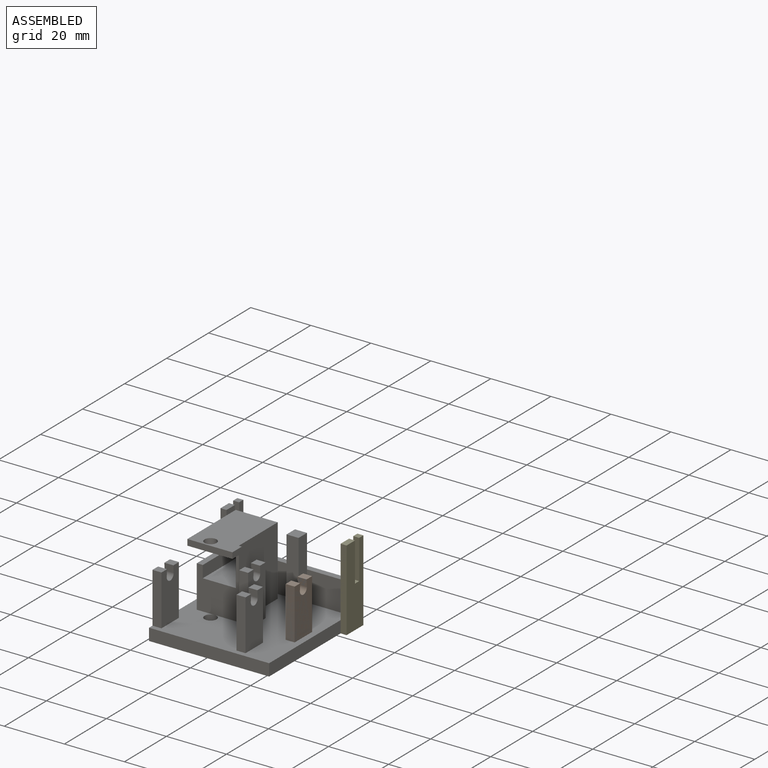
[diagram: assembled view]
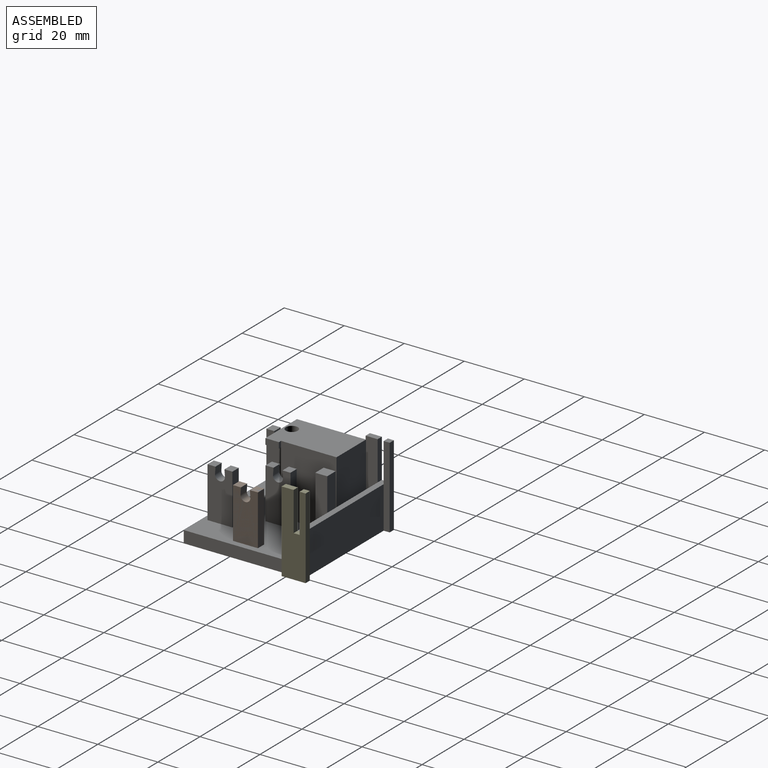
[diagram: assembled view, second angle]
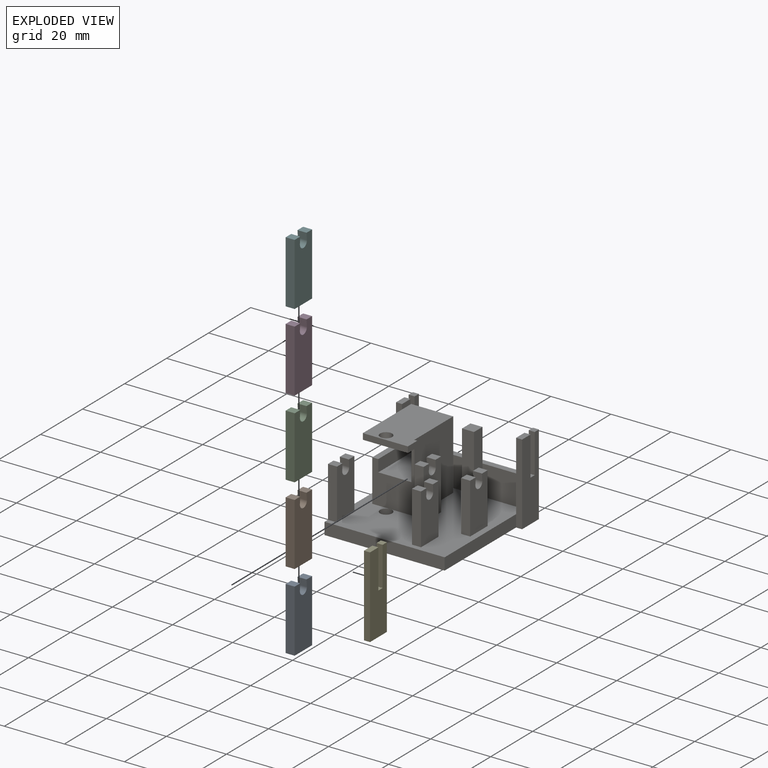
[diagram: exploded view]
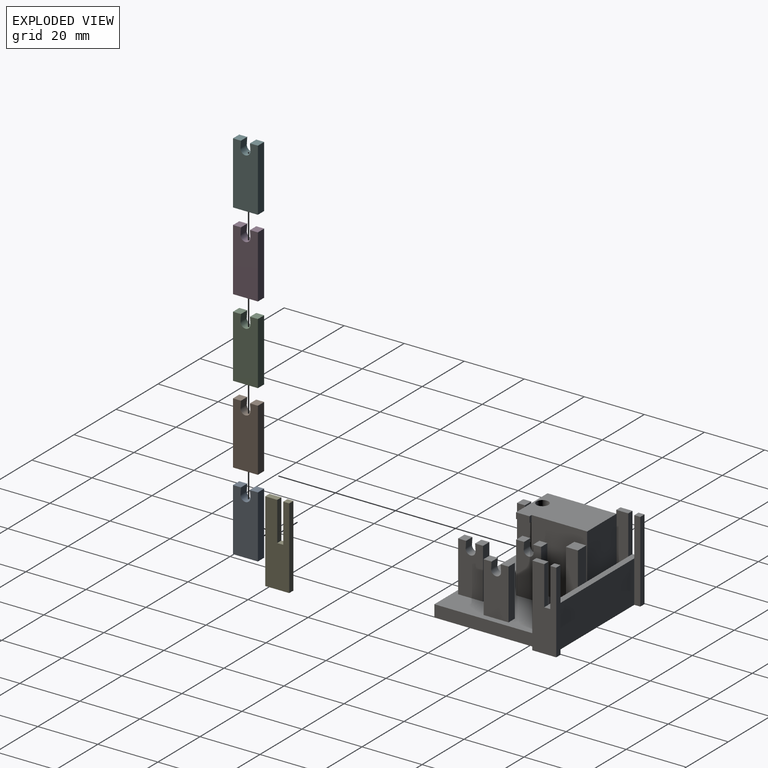
[diagram: exploded view, second angle]
FCSTD DOCUMENT  (FreeCAD 0.20R24693 (Git))
Label: rounout_test
License: All rights reserved
LicenseURL: http://en.wikipedia.org/wiki/All_rights_reserved
objects: Part::Box×28, Part::Cylinder×16, Part::Cut×7, App::Link×6, App::LinkGroup×6, Part::MultiFuse×6, Mesh::Feature×2, Sketcher::SketchObject×1, PartDesign::Pad×1, PartDesign::Body×1, Part::Cone×1
note: 62 computed .brp shape members not serialized (recipe doc carries the construction recipe); baked Part::Feature solids carry a one-line shape summary decoded from their .brp

FEATURE [Sketcher::SketchObject] Sketch001
  FullyConstrained = true
  MapMode = 2
  Placement = pos=(20,0,0) rot=(0.57735,0.57735,0.57735;2.0944rad)
  Support = -> [Sketch001]
  sketch-geometry (8):
    g0: LineSegment StartX=1 StartY=0 StartZ=0 EndX=9.3 EndY=0 EndZ=0
    g1: LineSegment StartX=9.3 StartY=0 StartZ=0 EndX=9.3 EndY=20.8 EndZ=0
    g2: LineSegment StartX=9.3 StartY=20.8 StartZ=0 EndX=6.65 EndY=20.8 EndZ=0
    g3: LineSegment StartX=1 StartY=20.8 StartZ=0 EndX=1 EndY=0 EndZ=0
    g4: LineSegment StartX=3.65 StartY=20.8 StartZ=0 EndX=3.50351 EndY=18.5576 EndZ=0
    g5: LineSegment StartX=6.79649 StartY=18.5576 StartZ=0 EndX=6.65 EndY=20.8 EndZ=0
    g6: ArcOfCircle CenterX=5.15 CenterY=18.45 CenterZ=0 NormalX=0 NormalY=0 NormalZ=1 AngleXU=0 Radius=1.65 StartAngle=3.07636 EndAngle=6.34842
    g7: LineSegment StartX=3.65 StartY=20.8 StartZ=0 EndX=1 EndY=20.8 EndZ=0
  constraints (23):
    c: Coincident(g0,g1)
    c: Coincident(g1,g2)
    c: Coincident(g7,g3)
    c: Coincident(g3,g0)
    c: Horizontal(g0)
    c: Vertical(g1)
    c: Vertical(g3)
    c: DistanceX(g7,g2) = 8.3
    c: DistanceY(g3,g3) = 20.8
    c: DistanceY(g-1,g0) = 0
    c: DistanceX(g0,g-1) = -1
    c: DistanceX(g4,g5) = 3
    c: Tangent(g4,g6) = -1.5708
    c: Tangent(g5,g6) = -1.5708
    c: Coincident(g2,g5)
    c: Coincident(g7,g4)
    c: DistanceY(g6,g3) = 2.35
    c: Equal(g7,g2)
    c: Equal(g4,g5)
    c: Parallel(g2,g7)
    c: Radius(g6) = 1.65
    c: Horizontal(g2)
    c: DistanceX(g3,g6) = 4.15
FEATURE [PartDesign::Pad] Pad001
  Direction = (1,0,0)
  Length = 3
  Length2 = 100
  Placement = pos=(20,0,0) rot=(0.57735,0.57735,0.57735;2.0944rad)
  Profile = -> Sketch001
  Reversed = true
  Type = 0
FEATURE [PartDesign::Body] Body002  label="base"
  Group = -> [Sketch001,Pad001]
  Origin = -> Origin002
  Tip = -> Pad001
FEATURE [App::Link] Link  label="Pad002"
  LinkTransform = true
  LinkedObject = -> Pad001
FEATURE [App::LinkGroup] LinkGroup
  ElementList = -> [Link]
  LinkMode = 1
  Placement = pos=(-15.5,0,0) rot=(0,0,1;0rad)
FEATURE [App::Link] Link001  label="Pad003"
  LinkTransform = true
  LinkedObject = -> Pad001
FEATURE [App::LinkGroup] LinkGroup001
  ElementList = -> [Link001]
  LinkMode = 1
  Placement = pos=(-7,-13.38,0) rot=(0,0,1;0rad)
FEATURE [App::Link] Link002  label="Pad004"
  LinkTransform = true
  LinkedObject = -> Pad001
FEATURE [App::LinkGroup] LinkGroup002
  ElementList = -> [Link002]
  LinkMode = 1
  Placement = pos=(-35,-13.38,0) rot=(0,0,1;0rad)
FEATURE [Part::Box] Box  label="Cube"
  AttacherType = Attacher::AttachEngine3D
  Height = 27
  Length = 14
  Placement = pos=(-13,8,0) rot=(0,0,1;0rad)
  Width = 18.5
FEATURE [Part::Box] Box001  label="Cube001"
  AttacherType = Attacher::AttachEngine3D
  Height = 11
  Length = 11
  Placement = pos=(-11,4,14) rot=(0,0,1;0rad)
  Width = 21.5
FEATURE [Part::Cut] Cut
  Base = -> Box
  Placement = pos=(-1,0,0) rot=(0,0,1;0rad)
  Tool = -> Box001
FEATURE [Part::Box] Box002  label="Cube002"
  AttacherType = Attacher::AttachEngine3D
  Height = 4
  Length = 40
  Placement = pos=(-18,-14,0) rot=(0,0,1;0rad)
  Width = 40
FEATURE [Part::Cylinder] Cylinder
  Angle = 360
  AttacherType = Attacher::AttachEngine3D
  FirstAngle = 0
  Height = 30
  Placement = pos=(-8,1,0) rot=(0,0,1;0rad)
  Radius = 2
  SecondAngle = 0
FEATURE [Part::Box] Box003  label="Cube003"
  AttacherType = Attacher::AttachEngine3D
  Height = 7
  Length = 10
  Placement = pos=(-18,8,18) rot=(0,0,1;0rad)
  Width = 10
FEATURE [Part::Cut] Cut002
  Base = -> Cut
  Placement = pos=(0,-5,0) rot=(0,0,1;0rad)
  Tool = -> Box003
FEATURE [Mesh::Feature] fc_39965_587726_000002  label="Sensor"
  Placement = pos=(27.8,26,28) rot=(0,-0.707107,0.707107;3.14159rad)
FEATURE [Part::Cylinder] cylinder004
  Angle = 360
  AttacherType = Attacher::AttachEngine3D
  FirstAngle = 0
  Height = 4
  Radius = 6.75
  SecondAngle = 0
FEATURE [Part::Cylinder] cylinder005
  Angle = 360
  AttacherType = Attacher::AttachEngine3D
  FirstAngle = 0
  Height = 30.9
  Placement = pos=(0,0,-3.8) rot=(0,0,1;0rad)
  Radius = 1.5
  SecondAngle = 0
FEATURE [Part::Cylinder] cylinder006
  Angle = 360
  AttacherType = Attacher::AttachEngine3D
  FirstAngle = 0
  Height = 19.6
  Placement = pos=(0,0,4) rot=(0,0,1;0rad)
  Radius = 8
  SecondAngle = 0
FEATURE [Part::Cylinder] cylinder007
  Angle = 360
  AttacherType = Attacher::AttachEngine3D
  FirstAngle = 0
  Height = 3
  Radius = 7.7
  SecondAngle = 0
FEATURE [Part::Cone] cylinder008
  Angle = 360
  AttacherType = Attacher::AttachEngine3D
  Height = 0.5
  Placement = pos=(0,0,11.7) rot=(0,0,1;0rad)
  Radius1 = 3
  Radius2 = 2.6
FEATURE [Part::Cylinder] cylinder009
  Angle = 360
  AttacherType = Attacher::AttachEngine3D
  FirstAngle = 0
  Height = 0.5
  Placement = pos=(0,0,11.2) rot=(0,0,1;0rad)
  Radius = 3
  SecondAngle = 0
FEATURE [Part::Cylinder] cylinder010
  Angle = 360
  AttacherType = Attacher::AttachEngine3D
  FirstAngle = 0
  Height = 11.2
  Radius = 2.8
  SecondAngle = 0
FEATURE [Part::Cylinder] cylinder011
  Angle = 360
  AttacherType = Attacher::AttachEngine3D
  FirstAngle = 0
  Height = 7
  Radius = 4
  SecondAngle = 0
FEATURE [Part::Cylinder] cylinder012
  Angle = 360
  AttacherType = Attacher::AttachEngine3D
  FirstAngle = 0
  Height = 8
  Radius = 4.8
  SecondAngle = 0
FEATURE [Part::Cylinder] cylinder013
  Angle = 360
  AttacherType = Attacher::AttachEngine3D
  FirstAngle = 0
  Height = 8
  Radius = 4
  SecondAngle = 0
FEATURE [Part::Cut] difference001
  Base = -> cylinder012
  Tool = -> cylinder013
FEATURE [Part::Cylinder] cylinder014
  Angle = 360
  AttacherType = Attacher::AttachEngine3D
  FirstAngle = 0
  Height = 3
  Radius = 13.25
  SecondAngle = 0
FEATURE [Part::MultiFuse] union001
  Shapes = -> [cylinder008,cylinder009,cylinder010,cylinder011,difference001,cylinder014]
FEATURE [Part::Cylinder] cylinder015
  Angle = 360
  AttacherType = Attacher::AttachEngine3D
  FirstAngle = 0
  Height = 22.4
  Radius = 1.7
  SecondAngle = 0
FEATURE [Part::Box] cube008
  AttacherType = Attacher::AttachEngine3D
  Height = 8
  Length = 1.7
  Placement = pos=(-0.85,-3,8) rot=(0,0,1;0rad)
  Width = 6
FEATURE [Part::Cylinder] cylinder016
  Angle = 360
  AttacherType = Attacher::AttachEngine3D
  FirstAngle = 0
  Height = 1
  Placement = pos=(4.4,0,7) rot=(0,0,1;0rad)
  Radius = 1.25
  SecondAngle = 0
FEATURE [Part::Cylinder] cylinder017
  Angle = 360
  AttacherType = Attacher::AttachEngine3D
  FirstAngle = 0
  Height = 1
  Placement = pos=(-2.2,3.81051,7) rot=(0,0,1;2.0944rad)
  Radius = 1.25
  SecondAngle = 0
FEATURE [Part::Cylinder] cylinder018
  Angle = 360
  AttacherType = Attacher::AttachEngine3D
  FirstAngle = 0
  Height = 1
  Placement = pos=(-2.2,-3.81051,7) rot=(0,0,1;4.18879rad)
  Radius = 1.25
  SecondAngle = 0
FEATURE [Part::Box] cube009
  AttacherType = Attacher::AttachEngine3D
  Height = 3
  Length = 7
  Placement = pos=(9.75,-1.09375,0) rot=(0,0,1;0rad)
  Width = 2.1875
FEATURE [Part::Box] cube010
  AttacherType = Attacher::AttachEngine3D
  Height = 3
  Length = 7
  Placement = pos=(8.99062,3.92778,0) rot=(0,0,1;0.523599rad)
  Width = 2.1875
FEATURE [Part::Box] cube011
  AttacherType = Attacher::AttachEngine3D
  Height = 3
  Length = 7
  Placement = pos=(5.82222,7.89687,0) rot=(0,0,1;1.0472rad)
  Width = 2.1875
FEATURE [Part::Box] cube012
  AttacherType = Attacher::AttachEngine3D
  Height = 3
  Length = 7
  Placement = pos=(1.09375,9.75,0) rot=(0,0,1;1.5708rad)
  Width = 2.1875
FEATURE [Part::Box] cube013
  AttacherType = Attacher::AttachEngine3D
  Height = 3
  Length = 7
  Placement = pos=(-3.92778,8.99062,0) rot=(0,0,1;2.0944rad)
  Width = 2.1875
FEATURE [Part::Box] cube014
  AttacherType = Attacher::AttachEngine3D
  Height = 3
  Length = 7
  Placement = pos=(-7.89687,5.82222,0) rot=(0,0,1;2.61799rad)
  Width = 2.1875
FEATURE [Part::Box] cube015
  AttacherType = Attacher::AttachEngine3D
  Height = 3
  Length = 7
  Placement = pos=(-9.75,1.09375,0) rot=(0,0,1;3.14159rad)
  Width = 2.1875
FEATURE [Part::Box] cube016
  AttacherType = Attacher::AttachEngine3D
  Height = 3
  Length = 7
  Placement = pos=(-8.99062,-3.92778,0) rot=(0,0,1;3.66519rad)
  Width = 2.1875
FEATURE [Part::Box] cube017
  AttacherType = Attacher::AttachEngine3D
  Height = 3
  Length = 7
  Placement = pos=(-5.82222,-7.89687,0) rot=(0,0,1;4.18879rad)
  Width = 2.1875
FEATURE [Part::Box] cube018
  AttacherType = Attacher::AttachEngine3D
  Height = 3
  Length = 7
  Placement = pos=(-1.09375,-9.75,0) rot=(0,0,-1;1.5708rad)
  Width = 2.1875
FEATURE [Part::Box] cube019
  AttacherType = Attacher::AttachEngine3D
  Height = 3
  Length = 7
  Placement = pos=(3.92778,-8.99062,0) rot=(0,0,-1;1.0472rad)
  Width = 2.1875
FEATURE [Part::Box] cube020
  AttacherType = Attacher::AttachEngine3D
  Height = 3
  Length = 7
  Placement = pos=(7.89687,-5.82222,0) rot=(0,0,-1;0.523599rad)
  Width = 2.1875
FEATURE [Part::Box] cube021
  AttacherType = Attacher::AttachEngine3D
  Height = 3
  Length = 7
  Placement = pos=(9.75,-1.09375,0) rot=(0,0,1;0rad)
  Width = 2.1875
FEATURE [Part::MultiFuse] Group003
  Shapes = -> [cube009,cube010,cube011,cube012,cube013,cube014,cube015,cube016,cube017,cube018,cube019,cube020,cube021]
FEATURE [Part::MultiFuse] union002
  Shapes = -> [cylinder015,cube008,cylinder016,cylinder017,cylinder018,Group003]
FEATURE [Part::Cut] difference002
  Base = -> union001
  Placement = pos=(0,0,-7.8) rot=(0,0,1;0rad)
  Tool = -> union002
FEATURE [Part::Cylinder] cylinder019
  Angle = 360
  AttacherType = Attacher::AttachEngine3D
  FirstAngle = 0
  Height = 19
  Placement = pos=(0,0,-11) rot=(0,0,1;0rad)
  Radius = 1.5
  SecondAngle = 0
FEATURE [Part::MultiFuse] Matrix_Union
  Placement = pos=(13.175,0,0) rot=(0,0,1;0rad)
  Shapes = -> [cylinder007,difference002,cylinder019]
FEATURE [Part::MultiFuse] Group004  label="Gearset"
  Placement = pos=(9,-8,18.4) rot=(0.57735,0.57735,-0.57735;4.18879rad)
  Shapes = -> [cylinder004,cylinder005,cylinder006,Matrix_Union]
FEATURE [Part::Box] Box004  label="Cube004"
  AttacherType = Attacher::AttachEngine3D
  Height = 2
  Length = 15
  Placement = pos=(-14,-1.5,25) rot=(0,0,1;0rad)
  Width = 4.5
FEATURE [Part::Box] Box005  label="Cube005"
  AttacherType = Attacher::AttachEngine3D
  Height = 14
  Length = 40
  Placement = pos=(-18,24,0) rot=(0,0,1;0rad)
  Width = 2
FEATURE [Part::Box] Box006  label="Cube006"
  AttacherType = Attacher::AttachEngine3D
  Height = 27
  Length = 2
  Placement = pos=(22,20,0) rot=(0,0,1;0rad)
  Width = 8
FEATURE [Part::Box] Box007  label="Cube007"
  AttacherType = Attacher::AttachEngine3D
  Height = 25
  Length = 2
  Placement = pos=(22,24,14) rot=(0,0,1;0rad)
  Width = 2
FEATURE [Part::Cut] Cut004  label="SensorSupport"
  Base = -> Box006
  Tool = -> Box007
FEATURE [App::Link] Link003  label="SensorSupport001"
  LinkTransform = true
  LinkedObject = -> Cut004
FEATURE [App::LinkGroup] LinkGroup003
  ElementList = -> [Link003]
  LinkMode = 1
  Placement = pos=(-40,0,0) rot=(0,0,1;0rad)
FEATURE [App::Link] Link004  label="Pad005"
  LinkTransform = true
  LinkedObject = -> Pad001
FEATURE [App::LinkGroup] LinkGroup004
  ElementList = -> [Link004]
  LinkMode = 1
FEATURE [App::Link] Link005  label="Frame001"
  LinkTransform = true
  LinkedObject = -> Cut003
FEATURE [App::LinkGroup] LinkGroup005  label="Frame1"
  ElementList = -> [Link005]
  LinkMode = 1
  Placement = pos=(-90.5,0,0) rot=(0,0,1;0rad)
FEATURE [Part::Box] Box008  label="Cube008"
  AttacherType = Attacher::AttachEngine3D
  Height = 25
  Length = 4
  Placement = pos=(4,20,0) rot=(0,0,1;0rad)
  Width = 4
FEATURE [Part::MultiFuse] Fusion
  Shapes = -> [Box004,Box002,Cut002,Box005,Cut004,LinkGroup003,LinkGroup004,LinkGroup,LinkGroup001,LinkGroup002,Box008]
FEATURE [Part::Cut] Cut003  label="Frame"
  Base = -> Fusion
  Tool = -> Cylinder
FEATURE [Part::Box] Box009  label="Backplane"
  AttacherType = Attacher::AttachEngine3D
  Height = 28
  Length = 140
  Placement = pos=(-108.5,28,0) rot=(0,0,1;0rad)
  Width = 4
FEATURE [Mesh::Feature] prussia_mount
  Placement = pos=(-120.5,6,36) rot=(0.57735,0.57735,0.57735;2.0944rad)
FEATURE [Part::Box] Box010  label="Cube009"
  AttacherType = Attacher::AttachEngine3D
  Height = 18
  Length = 3
  Placement = pos=(-108.5,-4,0) rot=(0,0,1;0rad)
  Width = 28
FEATURE [Part::Box] Box011  label="SupportPlane"
  AttacherType = Attacher::AttachEngine3D
  Height = 36
  Length = 4.5
  Placement = pos=(-113,-14,0) rot=(0,0,1;0rad)
  Width = 46
FEATURE [Part::Box] Box012  label="Cube010"
  AttacherType = Attacher::AttachEngine3D
  Height = 10
  Length = 12
  Placement = pos=(0,0,26) rot=(0,0,1;0rad)
  Width = 2
FEATURE [Part::Box] Box013  label="Cube011"
  AttacherType = Attacher::AttachEngine3D
  Height = 2
  Length = 4
  Placement = pos=(4,0,30) rot=(0,0,1;0rad)
  Width = 2
FEATURE [Part::Cut] Cut005  label="WireHarnesTiepoint"
  Base = -> Box012
  Placement = pos=(-106,28,-2) rot=(0,0,1;0rad)
  Tool = -> Box013
